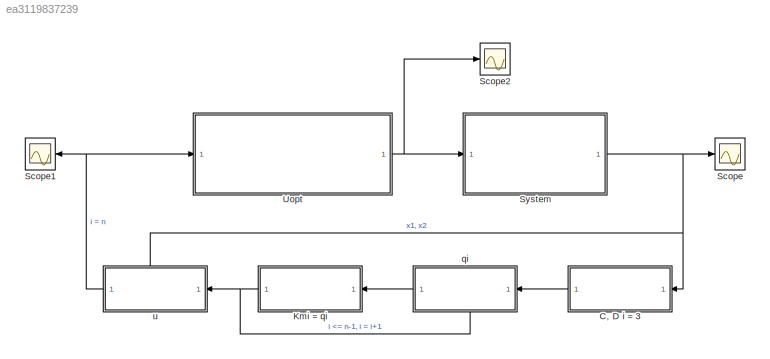
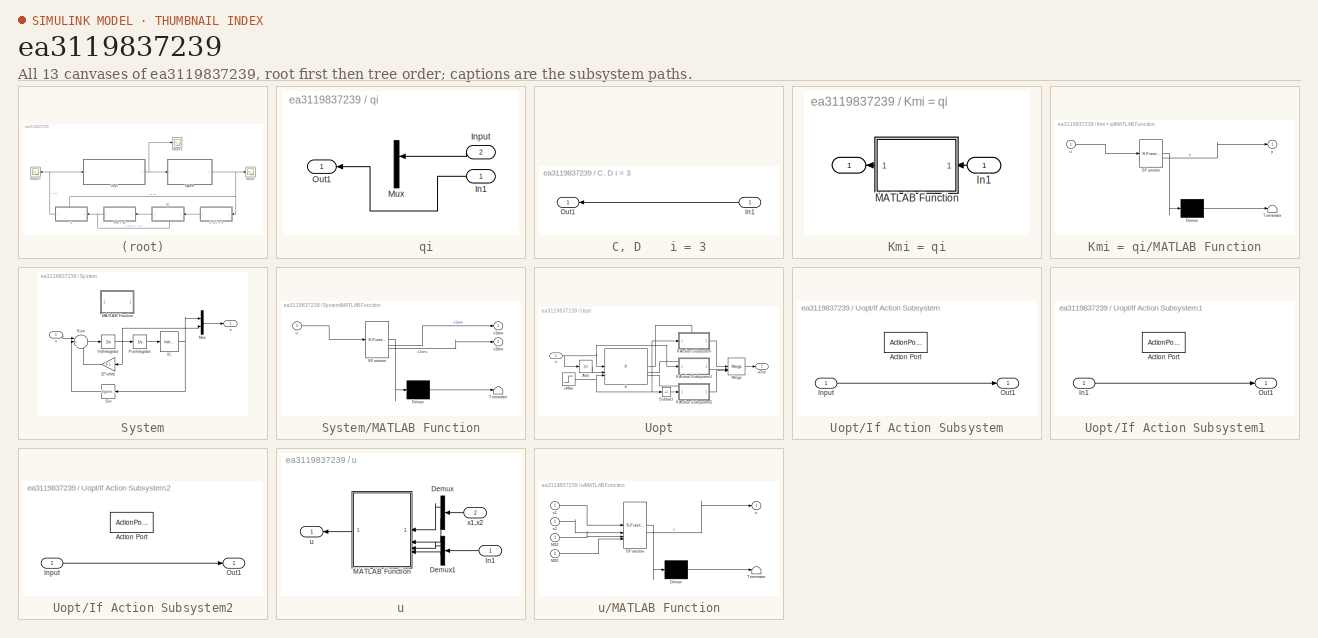
[diagram: thumbnail index - all 13 canvases of the model, root first then tree order]
MODEL slx_ea3119837239
KIND model
CONFIG AbsTol = auto
CONFIG EnableMultiTasking = off
CONFIG FixedStep = auto
CONFIG MaxStep = auto
CONFIG MinStep = auto
CONFIG RelTol = 1e-3
CONFIG SampleTimeConstraint = Unconstrained
CONFIG SolverName = VariableStepAuto
CONFIG StartTime = 0.0
CONFIG StopTime = 10.0
BLOCK [SubSystem]        qi
  PortSchema = {"entries":[{"content":{"sides":[{"content":{"connectorIds":["In1"]},"type":"ConnectorPlacement.EquallySpacedRectSide","uuid":"a4180728-2693-404c-a392-844bb374b3ea"},{"content":{"connectorIds":["Out1"],"side":"RIGHT"},"type":"ConnectorPlacement.EquallySpacedRectSide","uuid":"543e197c-f9c3-4796-a178-018829468a5a"},{"content":{"connectorIds":[],"side":"TOP"},"type":"ConnectorPlacement.EquallySpacedR...<+389ch>
BLOCK [Inport]        qi/In1
BLOCK [Inport]        qi/Input
  Port = 2
BLOCK [Mux]        qi/Mux
  Commented = on
  DisplayOption = bar
  Inputs = 2
BLOCK [Outport]        qi/Out1
BLOCK [SubSystem] C, D    i = 3
BLOCK [Inport] C, D    i = 3/In1
BLOCK [Outport] C, D    i = 3/Out1
BLOCK [SubSystem] Kmi = qi
BLOCK [Outport] Kmi = qi/ 
BLOCK [Inport] Kmi = qi/In1
BLOCK [SubSystem] Kmi = qi/MATLAB Function
  ErrorFcn = Stateflow.Translate.translate
  LibrarySourceBlock = simulink/User-Defined\nFunctions/MATLAB Function
  PermitHierarchicalResolution = ExplicitOnly
  SFBlockType = MATLAB Function
  TreatAsAtomicUnit = on
BLOCK [Demux] Kmi = qi/MATLAB Function/ Demux 
  Outputs = 1
BLOCK [S-Function] Kmi = qi/MATLAB Function/ SFunction 
  EnableBusSupport = on
  FunctionName = sf_sfun
  PortCounts = [1 2]
  SFcnIsStateOwnerBlock = off
  SFunctionDeploymentMode = off
  Tag = Stateflow S-Function 3
BLOCK [Terminator] Kmi = qi/MATLAB Function/ Terminator 
BLOCK [Inport] Kmi = qi/MATLAB Function/u
BLOCK [Outport] Kmi = qi/MATLAB Function/y
BLOCK [Scope] Scope
  Floating = off
  NumInputPorts = 1
  ScopeSpecificationString = Simulink.scopes.TimeScopeBlockCfg('CurrentConfiguration', extmgr.ConfigurationSet(extmgr.Configuration('Core','General UI',true),extmgr.Configuration('Core','Source UI',true),extmgr.Configuration('Sources','WiredSimulink',true),extmgr.Configuration('Visuals','Time Domain',true,'SerializedDisplays',{struct('MinYLimReal','-0.125','MaxYLimReal','1.125','YLabelReal','','MinYLimMag','0.00000','MaxYLimM...<+1382ch>
BLOCK [Scope] Scope1
  Floating = off
  NumInputPorts = 1
  ScopeSpecificationString = Simulink.scopes.TimeScopeBlockCfg('CurrentConfiguration', extmgr.ConfigurationSet(extmgr.Configuration('Core','General UI',true),extmgr.Configuration('Core','Source UI',true),extmgr.Configuration('Sources','WiredSimulink',true,'DataLoggingVariableName','ScopeData1'),extmgr.Configuration('Visuals','Time Domain',true,'SerializedDisplays',{struct('MinYLimReal','-0.04002','MaxYLimReal','1.94464','YLab...<+1478ch>
BLOCK [Scope] Scope2
  Floating = off
  NumInputPorts = 1
  ScopeSpecificationString = Simulink.scopes.TimeScopeBlockCfg('CurrentConfiguration', extmgr.ConfigurationSet(extmgr.Configuration('Core','General UI',true),extmgr.Configuration('Core','Source UI',true),extmgr.Configuration('Sources','WiredSimulink',true,'DataLoggingVariableName','ScopeData1'),extmgr.Configuration('Visuals','Time Domain',true,'SerializedDisplays',{struct('MinYLimReal','-1.125','MaxYLimReal','0.125','YLabelRe...<+1377ch>
BLOCK [SubSystem] System
BLOCK [Gain] System/(2*zeta)
  Gain = 0.1
BLOCK [InitialCondition] System/IC
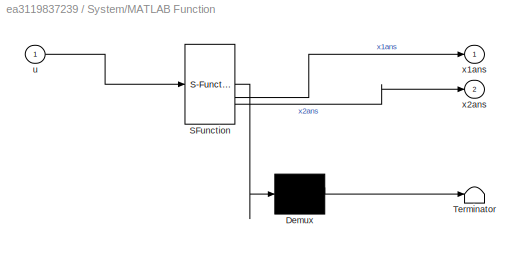
BLOCK [SubSystem] System/MATLAB Function
  Commented = on
  ErrorFcn = Stateflow.Translate.translate
  LibrarySourceBlock = simulink/User-Defined\nFunctions/MATLAB Function
  PermitHierarchicalResolution = ExplicitOnly
  SFBlockType = MATLAB Function
  TreatAsAtomicUnit = on
BLOCK [Demux] System/MATLAB Function/ Demux 
  Outputs = 1
BLOCK [S-Function] System/MATLAB Function/ SFunction 
  EnableBusSupport = on
  FunctionName = sf_sfun
  PortCounts = [1 3]
  SFcnIsStateOwnerBlock = off
  SFunctionDeploymentMode = off
  Tag = Stateflow S-Function 2
BLOCK [Terminator] System/MATLAB Function/ Terminator 
BLOCK [Inport] System/MATLAB Function/u
BLOCK [Outport] System/MATLAB Function/x1ans
BLOCK [Outport] System/MATLAB Function/x2ans
  Port = 2
BLOCK [Mux] System/Mux
  DisplayOption = bar
  Inputs = 2
BLOCK [Integrator] System/PosIntegrator
BLOCK [Trigonometry] System/Sin
BLOCK [Sum] System/Sum
  Inputs = |++-
BLOCK [Integrator] System/VelIntegrator
BLOCK [Inport] System/u
BLOCK [Outport] System/x
BLOCK [SubSystem] Uopt
BLOCK [Abs] Uopt/Abs
  SaturateOnIntegerOverflow = off
BLOCK [If] Uopt/If
  ElseIfExpressions = u2 < u3, u1 >= u3
  IfExpression = u1 <= -u3
  NumInputs = 3
BLOCK [SubSystem] Uopt/If Action Subsystem
  TreatAsAtomicUnit = on
BLOCK [ActionPort] Uopt/If Action Subsystem/Action Port
  ActionPortLabel = if(u1 <= -u3)
BLOCK [Inport] Uopt/If Action Subsystem/Input
BLOCK [Outport] Uopt/If Action Subsystem/Out1
BLOCK [SubSystem] Uopt/If Action Subsystem1
  TreatAsAtomicUnit = on
BLOCK [ActionPort] Uopt/If Action Subsystem1/Action Port
  ActionPortLabel = elseif(u2 < u3)
BLOCK [Inport] Uopt/If Action Subsystem1/In1
BLOCK [Outport] Uopt/If Action Subsystem1/Out1
BLOCK [SubSystem] Uopt/If Action Subsystem2
  TreatAsAtomicUnit = on
BLOCK [ActionPort] Uopt/If Action Subsystem2/Action Port
  ActionPortLabel = elseif( u1 >= u3)
BLOCK [Inport] Uopt/If Action Subsystem2/Input
BLOCK [Outport] Uopt/If Action Subsystem2/Out1
BLOCK [Merge] Uopt/Merge
  Inputs = 3
BLOCK [Sum] Uopt/Subtract
  IconShape = rectangular
  Inputs = -
BLOCK [Inport] Uopt/u
BLOCK [Step] Uopt/uMax
  SampleTime = 0
  Time = 0
BLOCK [Outport] Uopt/uOut
BLOCK [SubSystem] u
  PortSchema = {"entries":[{"content":{"sides":[{"content":{"connectorIds":["In1"]},"type":"ConnectorPlacement.EquallySpacedRectSide","uuid":"a4180728-2693-404c-a392-844bb374b3ea"},{"content":{"connectorIds":["Out1"],"side":"RIGHT"},"type":"ConnectorPlacement.EquallySpacedRectSide","uuid":"543e197c-f9c3-4796-a178-018829468a5a"},{"content":{"connectorIds":["In2"],"side":"TOP"},"type":"ConnectorPlacement.EquallySp...<+245ch>
BLOCK [Demux] u/Demux
  Outputs = 2
BLOCK [Demux] u/Demux1
  Outputs = 2
BLOCK [Inport] u/In1
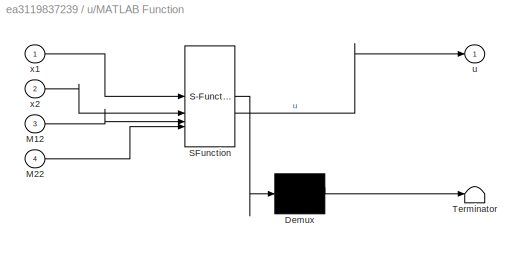
BLOCK [SubSystem] u/MATLAB Function
  ErrorFcn = Stateflow.Translate.translate
  LibrarySourceBlock = simulink/User-Defined\nFunctions/MATLAB Function
  PermitHierarchicalResolution = ExplicitOnly
  SFBlockType = MATLAB Function
  TreatAsAtomicUnit = on
BLOCK [Demux] u/MATLAB Function/ Demux 
  Outputs = 1
BLOCK [S-Function] u/MATLAB Function/ SFunction 
  EnableBusSupport = on
  FunctionName = sf_sfun
  PortCounts = [4 2]
  SFcnIsStateOwnerBlock = off
  SFunctionDeploymentMode = off
  Tag = Stateflow S-Function 1
BLOCK [Terminator] u/MATLAB Function/ Terminator 
BLOCK [Inport] u/MATLAB Function/M12
  Port = 3
BLOCK [Inport] u/MATLAB Function/M22
  Port = 4
BLOCK [Outport] u/MATLAB Function/u
BLOCK [Inport] u/MATLAB Function/x1
BLOCK [Inport] u/MATLAB Function/x2
  Port = 2
BLOCK [Outport] u/u
BLOCK [Inport] u/x1,x2
  Port = 2
LINE        qi/In1:1 ->        qi/Out1:1
LINE        qi/Input:1 ->        qi/Mux:1
LINE        qi:1 -> Kmi = qi:1
LINE C, D    i = 3/In1:1 -> C, D    i = 3/Out1:1
LINE C, D    i = 3:1 ->        qi:1
LINE Kmi = qi/In1:1 -> Kmi = qi/MATLAB Function:1
LINE Kmi = qi/MATLAB Function:1 -> Kmi = qi/ :1
NET Kmi = qi:1 ->        qi:2, u:1
LINE System/(2*zeta):1 -> System/Sum:3
NET System/IC:1 -> System/Mux:1, System/Sin:1
LINE System/Mux:1 -> System/x:1
LINE System/PosIntegrator:1 -> System/IC:1
LINE System/Sin:1 -> System/Sum:2
LINE System/Sum:1 -> System/VelIntegrator:1
NET System/VelIntegrator:1 -> System/(2*zeta):1, System/Mux:2, System/PosIntegrator:1
LINE System/u:1 -> System/Sum:1
NET System:1 -> C, D    i = 3:1, Scope:1, u:2
LINE Uopt/Abs:1 -> Uopt/If:2
LINE Uopt/If Action Subsystem/Input:1 -> Uopt/If Action Subsystem/Out1:1
LINE Uopt/If Action Subsystem1/In1:1 -> Uopt/If Action Subsystem1/Out1:1
LINE Uopt/If Action Subsystem1:1 -> Uopt/Merge:2
LINE Uopt/If Action Subsystem2/Input:1 -> Uopt/If Action Subsystem2/Out1:1
LINE Uopt/If Action Subsystem2:1 -> Uopt/Merge:3
LINE Uopt/If Action Subsystem:1 -> Uopt/Merge:1
LINE Uopt/If:1 -> Uopt/If Action Subsystem:ifaction
LINE Uopt/If:2 -> Uopt/If Action Subsystem1:ifaction
LINE Uopt/If:3 -> Uopt/If Action Subsystem2:ifaction
LINE Uopt/Merge:1 -> Uopt/uOut:1
LINE Uopt/Subtract:1 -> Uopt/If Action Subsystem2:1
NET Uopt/u:1 -> Uopt/Abs:1, Uopt/If Action Subsystem1:1, Uopt/If:1
NET Uopt/uMax:1 -> Uopt/If Action Subsystem:1, Uopt/If:3, Uopt/Subtract:1
NET Uopt:1 -> Scope2:1, System:1
LINE u/Demux1:1 -> u/MATLAB Function:3
LINE u/Demux1:2 -> u/MATLAB Function:4
LINE u/Demux:1 -> u/MATLAB Function:1
LINE u/Demux:2 -> u/MATLAB Function:2
LINE u/In1:1 -> u/Demux1:1
LINE u/MATLAB Function:1 -> u/u:1
LINE u/x1,x2:1 -> u/Demux:1
NET u:1 -> Scope1:1, Uopt:1
note: NET lines group one-source signal fan-out (src -> all destinations, sorted); 1:1 wires keep LINE
CHART u/MATLAB Function states=1 transitions=1
  STATE_LABEL 'eML_blk_kernel()'
  STATE_LABEL 'SCRIPT:\nfunction u = fcn(x1,x2, M12, M22)\n\nfunction beta = bOfx(x)\n\nbeta = sin(x)/x;\n\nend\n\nrealM12 = 1;\nrealM22 = 1;\nzeta = 0.08471;\n\na1 = realM22^2 + 2*zeta;\n\na2 = 1/(realM12^2) - (1/(realM22*2 + 2*zeta)^2);\n\nu = -0.5*((2*(realM12^2)*x1 + 2*(realM22^2)*x2) + exp(1)*(2*bOfx(x1)*x1 + 2*(bOfx(x1)/a1)*x2)) ...\n    + (exp(2))*(((bOfx(x1)^2)/(realM12^2))*x1 + (((bOfx(x1)^2)/a1)*a2*x2));\n\nend\n'
CHART System/MATLAB Function states=1 transitions=1
  STATE_LABEL 'eML_blk_kernel()'
  STATE_LABEL 'SCRIPT:\nfunction [x1ans,x2ans]= fcn(u)\n\nsyms x1 x2\n\node1 = diff(x1) == x2;\node2 = diff(x2) == sin(x1) - (2 * zeta * x2) + u;\nodes = [ode1; ode2];\n\n[x1ans, x2ans] = dsolve(odes);'
CHART Kmi = qi/MATLAB Function states=1 transitions=1
  STATE_LABEL 'eML_blk_kernel()'
  STATE_LABEL 'SCRIPT:\nfunction y = fcn(u)\n\ny = u;\n'
CHART  states=0 transitions=0
CHART  states=0 transitions=0
CHART  states=0 transitions=0
